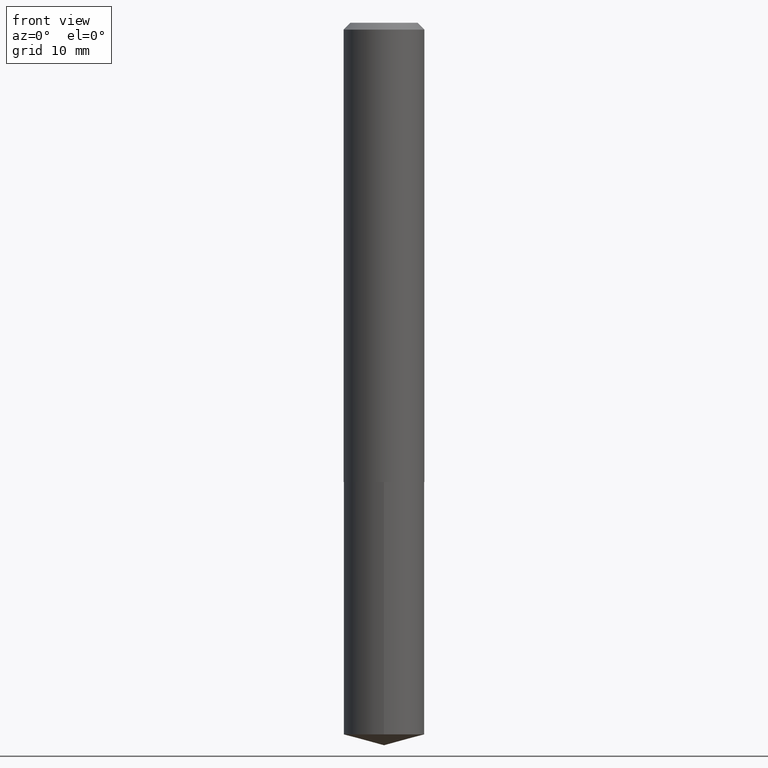
[diagram: clean part render]
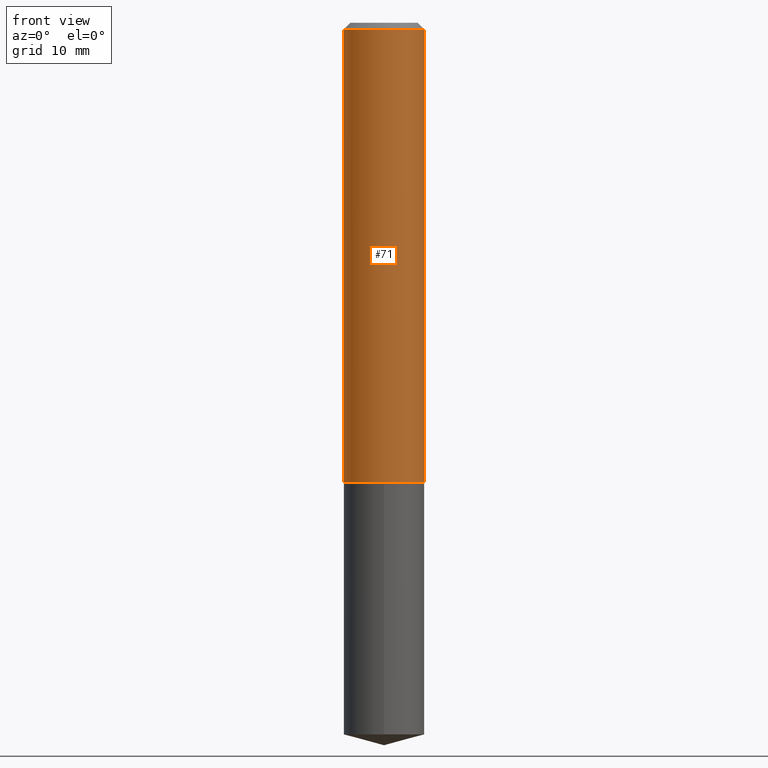
[diagram: same view with one face highlighted and labeled with its STEP entity id]
A machine part, front view. The second image highlights one B-rep face of the part: STEP entity #71.
In plain terms, the highlighted cylindrical surface (partial cylindrical patch) has radius 4.7003 mm, axis along (-0, 0, 1).
Its self-contained STEP definition (entity closure, byte-faithful):
#6 = CIRCLE ( 'NONE', #123, 0.1850500000000000200 ) ;
#32 = EDGE_CURVE ( 'NONE', #337, #335, #109, .T. ) ;
#42 = FACE_OUTER_BOUND ( 'NONE', #309, .T. ) ;
#56 = DIRECTION ( 'NONE',  ( 1.000000000000000000, -6.982962677686267499E-15, 0.000000000000000000 ) ) ;
#58 = DIRECTION ( 'NONE',  ( -2.445468806185136597E-29, 3.491481338843145583E-15, 1.000000000000000000 ) ) ;
#71 = ADVANCED_FACE ( 'NONE', ( #42 ), #218, .T. ) ;
#72 = DIRECTION ( 'NONE',  ( 1.000000000000000000, -6.982962677686267499E-15, 4.876176775795935793E-29 ) ) ;
#91 = ORIENTED_EDGE ( 'NONE', *, *, #32, .F. ) ;
#109 = LINE ( 'NONE', #188, #333 ) ;
#110 = CARTESIAN_POINT ( 'NONE',  ( 0.1850500000000001311, -1.292197243505844668E-15, 9.023365123610386073E-30 ) ) ;
#119 = ORIENTED_EDGE ( 'NONE', *, *, #242, .T. ) ;
#123 = AXIS2_PLACEMENT_3D ( 'NONE', #328, #58, #56 ) ;
#167 = CARTESIAN_POINT ( 'NONE',  ( -0.1850500000000000200, -2.409067376452562318E-15, -0.03125000000000021511 ) ) ;
#168 = LINE ( 'NONE', #110, #216 ) ;
#185 = AXIS2_PLACEMENT_3D ( 'NONE', #294, #232, #298 ) ;
#186 = EDGE_CURVE ( 'NONE', #368, #213, #168, .T. ) ;
#188 = CARTESIAN_POINT ( 'NONE',  ( -0.1850500000000001311, 1.314859332524066325E-15, -9.102489384516709155E-30 ) ) ;
#189 = DIRECTION ( 'NONE',  ( -2.445468806185136597E-29, 3.491481338843145583E-15, 1.000000000000000000 ) ) ;
#195 = DIRECTION ( 'NONE',  ( -2.445468806185136877E-29, 3.491481338843145188E-15, 1.000000000000000000 ) ) ;
#213 = VERTEX_POINT ( 'NONE', #387 ) ;
#216 = VECTOR ( 'NONE', #267, 39.37007874015748143 ) ;
#218 = CYLINDRICAL_SURFACE ( 'NONE', #323, 0.1850500000000001311 ) ;
#222 = ORIENTED_EDGE ( 'NONE', *, *, #305, .F. ) ;
#232 = DIRECTION ( 'NONE',  ( -2.445468806185136597E-29, 3.491481338843145583E-15, 1.000000000000000000 ) ) ;
#242 = EDGE_CURVE ( 'NONE', #337, #368, #329, .T. ) ;
#259 = CARTESIAN_POINT ( 'NONE',  ( -0.1850500000000002698, -6.023885293590342059E-15, -2.101900000000000546 ) ) ;
#267 = DIRECTION ( 'NONE',  ( -2.445468806185136877E-29, 3.491481338843145188E-15, 1.000000000000000000 ) ) ;
#291 = CARTESIAN_POINT ( 'NONE',  ( 0.1850500000000002698, -8.630941869620254432E-15, -2.101900000000000546 ) ) ;
#294 = CARTESIAN_POINT ( 'NONE',  ( 5.140130883720539947E-29, -7.338744626114409370E-15, -2.101900000000000546 ) ) ;
#298 = DIRECTION ( 'NONE',  ( 1.000000000000000000, -6.982962677686265922E-15, 0.000000000000000000 ) ) ;
#301 = ORIENTED_EDGE ( 'NONE', *, *, #186, .T. ) ;
#305 = EDGE_CURVE ( 'NONE', #335, #213, #6, .T. ) ;
#309 = EDGE_LOOP ( 'NONE', ( #91, #119, #301, #222 ) ) ;
#323 = AXIS2_PLACEMENT_3D ( 'NONE', #378, #189, #72 ) ;
#328 = CARTESIAN_POINT ( 'NONE',  ( 7.642090019328604414E-31, -1.091087918388490513E-16, -0.03125000000000021511 ) ) ;
#329 = CIRCLE ( 'NONE', #185, 0.1850500000000002698 ) ;
#333 = VECTOR ( 'NONE', #195, 39.37007874015748143 ) ;
#335 = VERTEX_POINT ( 'NONE', #167 ) ;
#337 = VERTEX_POINT ( 'NONE', #259 ) ;
#368 = VERTEX_POINT ( 'NONE', #291 ) ;
#378 = CARTESIAN_POINT ( 'NONE',  ( 0.000000000000000000, 0.000000000000000000, 0.000000000000000000 ) ) ;
#387 = CARTESIAN_POINT ( 'NONE',  ( 0.1850500000000000200, -1.401306035344692979E-15, -0.03125000000000021511 ) ) ;